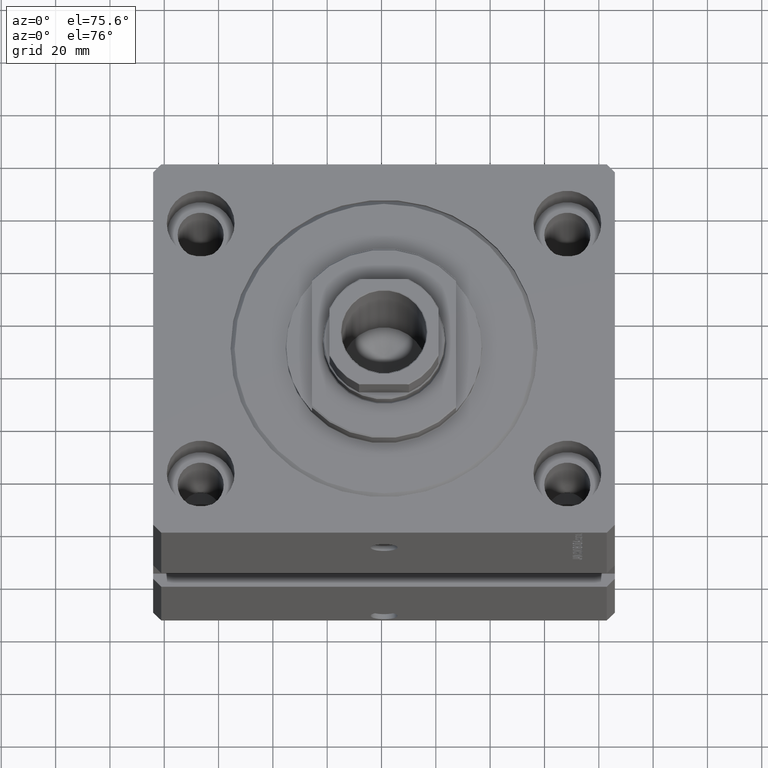
[diagram: clean part render]
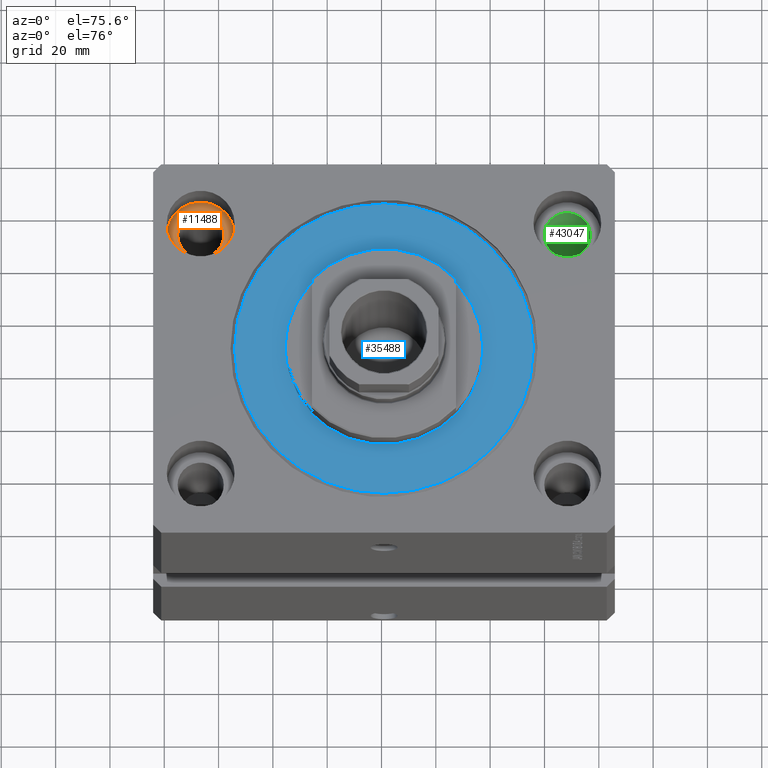
[diagram: same view with three faces highlighted in distinct colors, each labeled with its STEP entity id]
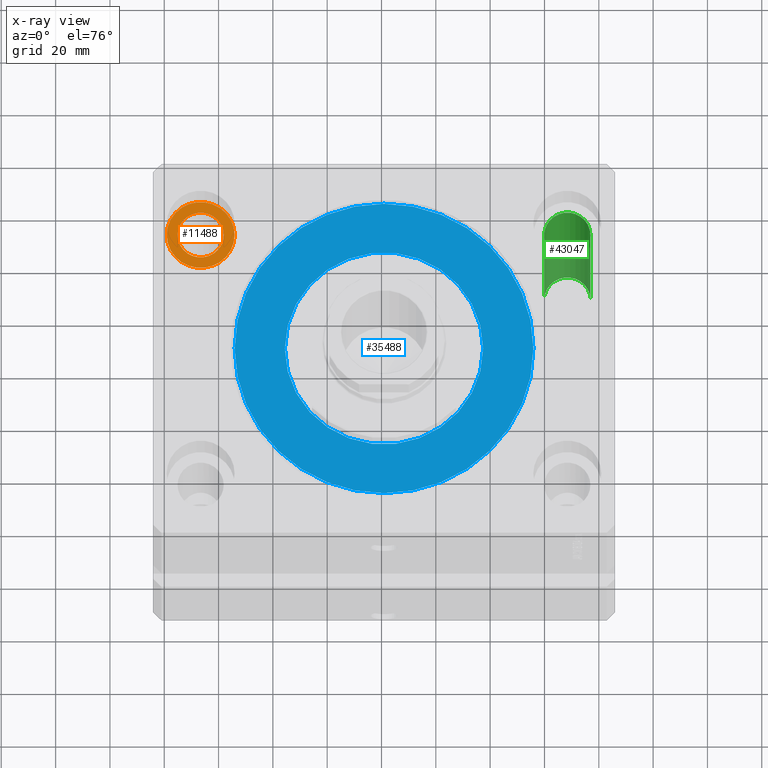
[diagram: x-ray of the same camera — body ghosted, the three highlighted faces saturated]
A machine part, auxiliary view with three faces highlighted in distinct colors.
The next image is the same camera in x-ray (body ghosted, the three faces saturated) — at least one of them is partly hidden behind the body in this view.
Their STEP definitions:

[orange] entity #11488 — the highlighted planar face has unit normal (0, 0, 1).
#2311 = AXIS2_PLACEMENT_3D ( 'NONE', #12715, #27034, #2789 ) ;
#2747 = FACE_OUTER_BOUND ( 'NONE', #29636, .T. ) ;
#2789 = DIRECTION ( 'NONE',  ( 1.000000000000000000, 0.000000000000000000, 0.000000000000000000 ) ) ;
#4346 = EDGE_CURVE ( 'NONE', #30457, #40434, #15585, .T. ) ;
#6377 = DIRECTION ( 'NONE',  ( 1.000000000000000000, 0.000000000000000000, 0.000000000000000000 ) ) ;
#7349 = CARTESIAN_POINT ( 'NONE',  ( -67.50000000000000000, 47.50000000000000000, -17.00000000000000000 ) ) ;
#7709 = AXIS2_PLACEMENT_3D ( 'NONE', #7349, #32731, #25341 ) ;
#7751 = AXIS2_PLACEMENT_3D ( 'NONE', #38030, #35012, #6377 ) ;
#8891 = CARTESIAN_POINT ( 'NONE',  ( -55.00000000000000711, 47.50000000000000000, -17.00000000000000000 ) ) ;
#9364 = CIRCLE ( 'NONE', #18239, 8.499999999999992895 ) ;
#10139 = DIRECTION ( 'NONE',  ( 1.000000000000000000, 0.000000000000000000, -0.000000000000000000 ) ) ;
#10619 = DIRECTION ( 'NONE',  ( 0.000000000000000000, 0.000000000000000000, 1.000000000000000000 ) ) ;
#11488 = ADVANCED_FACE ( 'NONE', ( #34381, #2747 ), #30916, .T. ) ;
#12715 = CARTESIAN_POINT ( 'NONE',  ( -67.50000000000000000, 47.50000000000000000, -17.00000000000000000 ) ) ;
#12819 = VERTEX_POINT ( 'NONE', #8891 ) ;
#13563 = CARTESIAN_POINT ( 'NONE',  ( -59.00000000000001421, 47.50000000000000000, -17.00000000000000000 ) ) ;
#13576 = DIRECTION ( 'NONE',  ( 0.000000000000000000, 0.000000000000000000, 1.000000000000000000 ) ) ;
#13705 = ORIENTED_EDGE ( 'NONE', *, *, #23730, .F. ) ;
#13814 = CARTESIAN_POINT ( 'NONE',  ( -67.50000000000000000, 47.50000000000000000, -17.00000000000000000 ) ) ;
#15585 = CIRCLE ( 'NONE', #2311, 8.499999999999992895 ) ;
#16422 = CARTESIAN_POINT ( 'NONE',  ( -76.00000000000000000, 47.50000000000000000, -17.00000000000000000 ) ) ;
#17895 = AXIS2_PLACEMENT_3D ( 'NONE', #13814, #13576, #10139 ) ;
#18239 = AXIS2_PLACEMENT_3D ( 'NONE', #42514, #10619, #42971 ) ;
#21219 = ORIENTED_EDGE ( 'NONE', *, *, #4346, .F. ) ;
#23730 = EDGE_CURVE ( 'NONE', #40434, #30457, #9364, .T. ) ;
#25341 = DIRECTION ( 'NONE',  ( 1.000000000000000000, 0.000000000000000000, 0.000000000000000000 ) ) ;
#27034 = DIRECTION ( 'NONE',  ( 0.000000000000000000, 0.000000000000000000, 1.000000000000000000 ) ) ;
#29636 = EDGE_LOOP ( 'NONE', ( #41169, #30698 ) ) ;
#30457 = VERTEX_POINT ( 'NONE', #13563 ) ;
#30698 = ORIENTED_EDGE ( 'NONE', *, *, #34491, .T. ) ;
#30916 = PLANE ( 'NONE',  #17895 ) ;
#32731 = DIRECTION ( 'NONE',  ( 0.000000000000000000, 0.000000000000000000, 1.000000000000000000 ) ) ;
#33305 = EDGE_CURVE ( 'NONE', #12819, #42448, #40893, .T. ) ;
#34248 = CIRCLE ( 'NONE', #7751, 12.49999999999999645 ) ;
#34381 = FACE_BOUND ( 'NONE', #38187, .T. ) ;
#34491 = EDGE_CURVE ( 'NONE', #42448, #12819, #34248, .T. ) ;
#35012 = DIRECTION ( 'NONE',  ( 0.000000000000000000, 0.000000000000000000, 1.000000000000000000 ) ) ;
#38030 = CARTESIAN_POINT ( 'NONE',  ( -67.50000000000000000, 47.50000000000000000, -17.00000000000000000 ) ) ;
#38187 = EDGE_LOOP ( 'NONE', ( #21219, #13705 ) ) ;
#40434 = VERTEX_POINT ( 'NONE', #16422 ) ;
#40469 = CARTESIAN_POINT ( 'NONE',  ( -80.00000000000000000, 47.50000000000000000, -17.00000000000000000 ) ) ;
#40893 = CIRCLE ( 'NONE', #7709, 12.49999999999999645 ) ;
#41169 = ORIENTED_EDGE ( 'NONE', *, *, #33305, .T. ) ;
#42448 = VERTEX_POINT ( 'NONE', #40469 ) ;
#42514 = CARTESIAN_POINT ( 'NONE',  ( -67.50000000000000000, 47.50000000000000000, -17.00000000000000000 ) ) ;
#42971 = DIRECTION ( 'NONE',  ( 1.000000000000000000, 0.000000000000000000, 0.000000000000000000 ) ) ;

[blue] entity #35488 — the highlighted planar face has unit normal (0, 0, -1).
#2178 = DIRECTION ( 'NONE',  ( 1.000000000000000000, 0.000000000000000000, -0.000000000000000000 ) ) ;
#2983 = DIRECTION ( 'NONE',  ( 1.000000000000000000, 0.000000000000000000, 0.000000000000000000 ) ) ;
#3718 = AXIS2_PLACEMENT_3D ( 'NONE', #15881, #26276, #11760 ) ;
#4154 = DIRECTION ( 'NONE',  ( 1.000000000000000000, 0.000000000000000000, 0.000000000000000000 ) ) ;
#6233 = CIRCLE ( 'NONE', #16530, 55.00000000000002132 ) ;
#6436 = AXIS2_PLACEMENT_3D ( 'NONE', #9413, #9632, #16552 ) ;
#6742 = ORIENTED_EDGE ( 'NONE', *, *, #32338, .T. ) ;
#9413 = CARTESIAN_POINT ( 'NONE',  ( 0.000000000000000000, 0.000000000000000000, 0.000000000000000000 ) ) ;
#9632 = DIRECTION ( 'NONE',  ( 0.000000000000000000, 0.000000000000000000, 1.000000000000000000 ) ) ;
#10334 = VERTEX_POINT ( 'NONE', #45347 ) ;
#10589 = AXIS2_PLACEMENT_3D ( 'NONE', #19709, #26873, #2178 ) ;
#11748 = DIRECTION ( 'NONE',  ( 0.000000000000000000, 0.000000000000000000, 1.000000000000000000 ) ) ;
#11760 = DIRECTION ( 'NONE',  ( 1.000000000000000000, 0.000000000000000000, 0.000000000000000000 ) ) ;
#12992 = CARTESIAN_POINT ( 'NONE',  ( -36.50000000000000000, 4.469960816887838430E-15, -2.168404344971008868E-16 ) ) ;
#14125 = VERTEX_POINT ( 'NONE', #12992 ) ;
#15881 = CARTESIAN_POINT ( 'NONE',  ( 0.000000000000000000, 0.000000000000000000, 0.000000000000000000 ) ) ;
#16530 = AXIS2_PLACEMENT_3D ( 'NONE', #34629, #34853, #2983 ) ;
#16552 = DIRECTION ( 'NONE',  ( 1.000000000000000000, 0.000000000000000000, 0.000000000000000000 ) ) ;
#17061 = EDGE_CURVE ( 'NONE', #42171, #10334, #6233, .T. ) ;
#17109 = EDGE_CURVE ( 'NONE', #21254, #14125, #32056, .T. ) ;
#19709 = CARTESIAN_POINT ( 'NONE',  ( 0.000000000000000000, 0.000000000000000000, 0.000000000000000000 ) ) ;
#21254 = VERTEX_POINT ( 'NONE', #38061 ) ;
#21720 = AXIS2_PLACEMENT_3D ( 'NONE', #35792, #11748, #4154 ) ;
#22402 = EDGE_LOOP ( 'NONE', ( #40381, #6742 ) ) ;
#24004 = EDGE_CURVE ( 'NONE', #14125, #21254, #30033, .T. ) ;
#25040 = EDGE_LOOP ( 'NONE', ( #45698, #37023 ) ) ;
#26276 = DIRECTION ( 'NONE',  ( -0.000000000000000000, -0.000000000000000000, -1.000000000000000000 ) ) ;
#26873 = DIRECTION ( 'NONE',  ( 0.000000000000000000, 0.000000000000000000, 1.000000000000000000 ) ) ;
#28028 = CIRCLE ( 'NONE', #3718, 55.00000000000002132 ) ;
#30033 = CIRCLE ( 'NONE', #6436, 36.50000000000000000 ) ;
#32056 = CIRCLE ( 'NONE', #21720, 36.50000000000000000 ) ;
#32338 = EDGE_CURVE ( 'NONE', #10334, #42171, #28028, .T. ) ;
#33354 = FACE_BOUND ( 'NONE', #25040, .T. ) ;
#33821 = FACE_OUTER_BOUND ( 'NONE', #22402, .T. ) ;
#34629 = CARTESIAN_POINT ( 'NONE',  ( 0.000000000000000000, 0.000000000000000000, 0.000000000000000000 ) ) ;
#34853 = DIRECTION ( 'NONE',  ( -0.000000000000000000, -0.000000000000000000, -1.000000000000000000 ) ) ;
#35488 = ADVANCED_FACE ( 'NONE', ( #33354, #33821 ), #44458, .F. ) ;
#35792 = CARTESIAN_POINT ( 'NONE',  ( 0.000000000000000000, 0.000000000000000000, 0.000000000000000000 ) ) ;
#37023 = ORIENTED_EDGE ( 'NONE', *, *, #24004, .T. ) ;
#37508 = CARTESIAN_POINT ( 'NONE',  ( 55.00000000000002132, 0.000000000000000000, 0.000000000000000000 ) ) ;
#38061 = CARTESIAN_POINT ( 'NONE',  ( 36.50000000000000000, 0.000000000000000000, -2.168404344971008868E-16 ) ) ;
#40381 = ORIENTED_EDGE ( 'NONE', *, *, #17061, .T. ) ;
#42171 = VERTEX_POINT ( 'NONE', #37508 ) ;
#44458 = PLANE ( 'NONE',  #10589 ) ;
#45347 = CARTESIAN_POINT ( 'NONE',  ( -55.00000000000002132, 6.827405905246496343E-15, 0.000000000000000000 ) ) ;
#45698 = ORIENTED_EDGE ( 'NONE', *, *, #17109, .T. ) ;

[green] entity #43047 — the highlighted cylindrical surface (edge-blend (fillet) strip) has radius 8.5 mm, axis along (0, 0, 1).
#644 = VERTEX_POINT ( 'NONE', #39471 ) ;
#4692 = ORIENTED_EDGE ( 'NONE', *, *, #15162, .T. ) ;
#4894 = AXIS2_PLACEMENT_3D ( 'NONE', #40838, #33443, #12423 ) ;
#6317 = CARTESIAN_POINT ( 'NONE',  ( 67.50000000000000000, 47.50000000000001421, -130.0000000000000000 ) ) ;
#8137 = CARTESIAN_POINT ( 'NONE',  ( 76.00000000000001421, 47.50000000000001421, -113.0000000000000000 ) ) ;
#9792 = VERTEX_POINT ( 'NONE', #17064 ) ;
#11460 = DIRECTION ( 'NONE',  ( 0.000000000000000000, 0.000000000000000000, -1.000000000000000000 ) ) ;
#11608 = CARTESIAN_POINT ( 'NONE',  ( 76.00000000000001421, 47.50000000000001421, -130.0000000000000000 ) ) ;
#12423 = DIRECTION ( 'NONE',  ( 1.000000000000000000, 0.000000000000000000, 0.000000000000000000 ) ) ;
#13075 = CIRCLE ( 'NONE', #4894, 8.500000000000007105 ) ;
#15162 = EDGE_CURVE ( 'NONE', #33046, #644, #28923, .T. ) ;
#15477 = LINE ( 'NONE', #30024, #18233 ) ;
#17064 = CARTESIAN_POINT ( 'NONE',  ( 59.00000000000000000, 47.50000000000001421, -113.0000000000000000 ) ) ;
#17215 = CARTESIAN_POINT ( 'NONE',  ( 59.00000000000000000, 47.50000000000001421, -17.00000000000000000 ) ) ;
#18233 = VECTOR ( 'NONE', #36961, 1000.000000000000000 ) ;
#19418 = AXIS2_PLACEMENT_3D ( 'NONE', #42669, #11460, #32472 ) ;
#19425 = VECTOR ( 'NONE', #43486, 1000.000000000000000 ) ;
#20117 = EDGE_LOOP ( 'NONE', ( #31223, #39369, #4692, #39941 ) ) ;
#24039 = AXIS2_PLACEMENT_3D ( 'NONE', #6317, #44908, #41429 ) ;
#24809 = EDGE_CURVE ( 'NONE', #644, #31629, #13075, .T. ) ;
#27318 = FACE_OUTER_BOUND ( 'NONE', #20117, .T. ) ;
#28923 = LINE ( 'NONE', #11608, #19425 ) ;
#30024 = CARTESIAN_POINT ( 'NONE',  ( 59.00000000000000000, 47.50000000000001421, -130.0000000000000000 ) ) ;
#31223 = ORIENTED_EDGE ( 'NONE', *, *, #45122, .F. ) ;
#31479 = CYLINDRICAL_SURFACE ( 'NONE', #24039, 8.500000000000007105 ) ;
#31629 = VERTEX_POINT ( 'NONE', #17215 ) ;
#32472 = DIRECTION ( 'NONE',  ( -1.000000000000000000, 0.000000000000000000, 0.000000000000000000 ) ) ;
#33046 = VERTEX_POINT ( 'NONE', #8137 ) ;
#33443 = DIRECTION ( 'NONE',  ( 0.000000000000000000, 0.000000000000000000, 1.000000000000000000 ) ) ;
#34275 = CIRCLE ( 'NONE', #19418, 8.500000000000007105 ) ;
#35422 = EDGE_CURVE ( 'NONE', #9792, #33046, #34275, .T. ) ;
#36961 = DIRECTION ( 'NONE',  ( -0.000000000000000000, -0.000000000000000000, 1.000000000000000000 ) ) ;
#39369 = ORIENTED_EDGE ( 'NONE', *, *, #35422, .T. ) ;
#39471 = CARTESIAN_POINT ( 'NONE',  ( 76.00000000000001421, 47.50000000000001421, -17.00000000000000000 ) ) ;
#39941 = ORIENTED_EDGE ( 'NONE', *, *, #24809, .T. ) ;
#40838 = CARTESIAN_POINT ( 'NONE',  ( 67.50000000000000000, 47.50000000000001421, -17.00000000000000000 ) ) ;
#41429 = DIRECTION ( 'NONE',  ( 1.000000000000000000, 0.000000000000000000, 0.000000000000000000 ) ) ;
#42669 = CARTESIAN_POINT ( 'NONE',  ( 67.50000000000000000, 47.50000000000001421, -113.0000000000000000 ) ) ;
#43047 = ADVANCED_FACE ( 'NONE', ( #27318 ), #31479, .F. ) ;
#43486 = DIRECTION ( 'NONE',  ( -0.000000000000000000, -0.000000000000000000, 1.000000000000000000 ) ) ;
#44908 = DIRECTION ( 'NONE',  ( -0.000000000000000000, -0.000000000000000000, 1.000000000000000000 ) ) ;
#45122 = EDGE_CURVE ( 'NONE', #9792, #31629, #15477, .T. ) ;